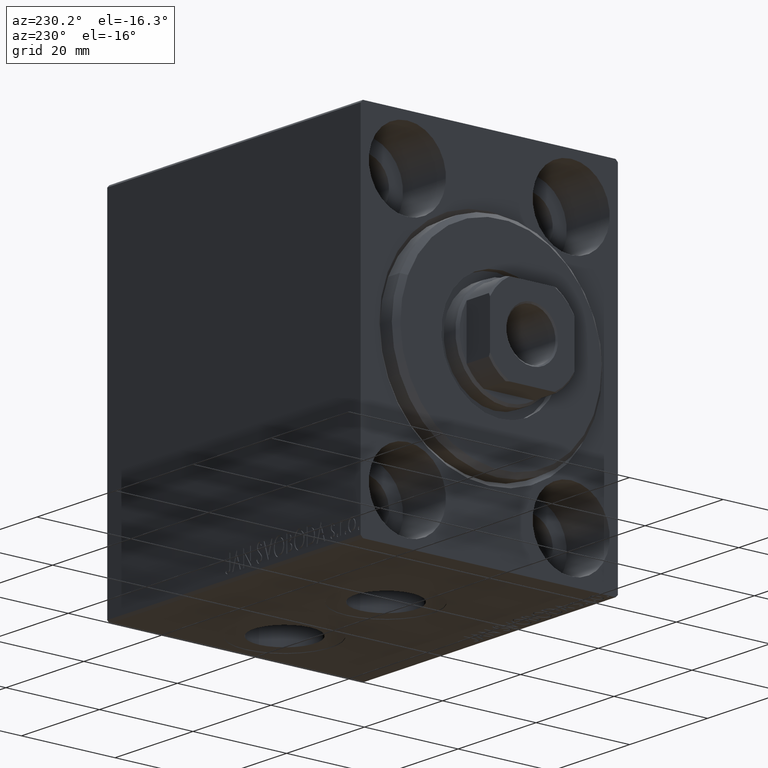
[diagram: clean part render]
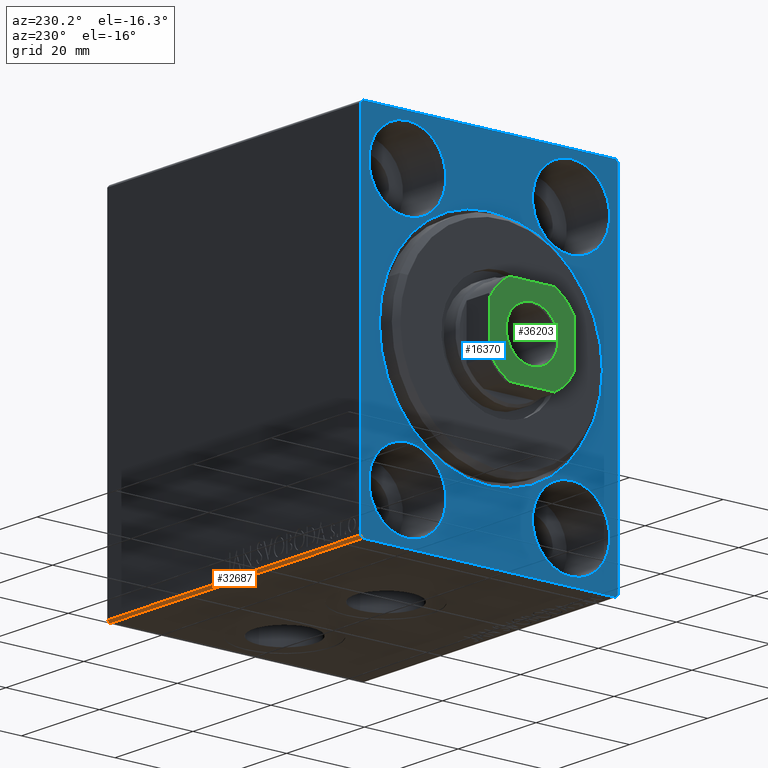
[diagram: same view with three faces highlighted in distinct colors, each labeled with its STEP entity id]
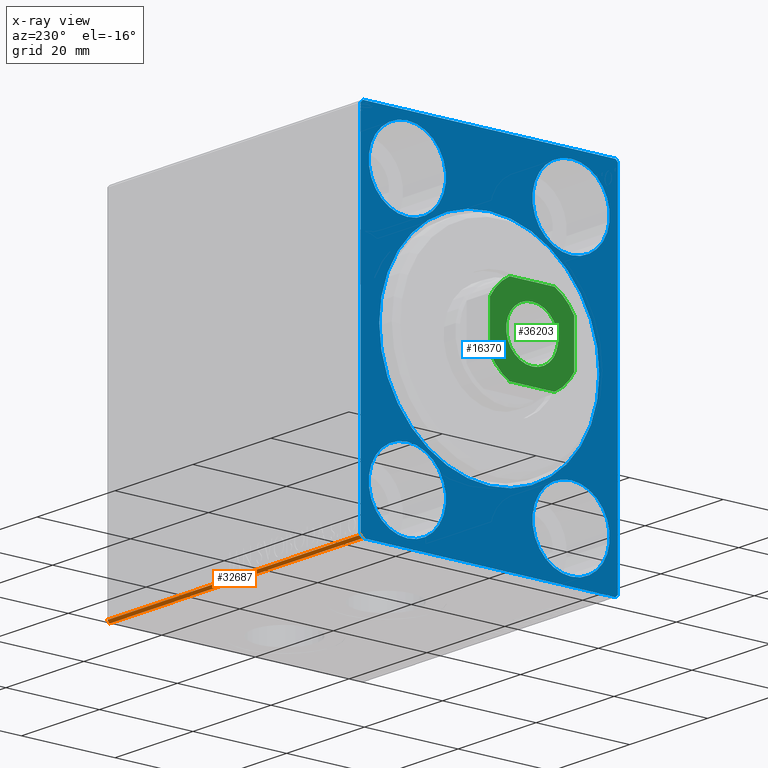
[diagram: x-ray of the same camera — body ghosted, the three highlighted faces saturated]
A machine part, auxiliary view with three faces highlighted in distinct colors.
The next image is the same camera in x-ray (body ghosted, the three faces saturated) — at least one of them is partly hidden behind the body in this view.
Their STEP definitions:

[orange] entity #32687 — the highlighted planar face has unit normal (0, -0.7071, 0.7071).
#1030 = LINE ( 'NONE', #14602, #32467 ) ;
#1162 = VECTOR ( 'NONE', #5565, 1000.000000000000000 ) ;
#1657 = ORIENTED_EDGE ( 'NONE', *, *, #28628, .F. ) ;
#4346 = LINE ( 'NONE', #28368, #38050 ) ;
#4579 = DIRECTION ( 'NONE',  ( -0.000000000000000000, 0.7071067811865474617, 0.7071067811865474617 ) ) ;
#4758 = EDGE_CURVE ( 'NONE', #41721, #27553, #4346, .T. ) ;
#4868 = ORIENTED_EDGE ( 'NONE', *, *, #9123, .F. ) ;
#5565 = DIRECTION ( 'NONE',  ( 1.000000000000000000, 0.000000000000000000, 0.000000000000000000 ) ) ;
#5791 = FACE_OUTER_BOUND ( 'NONE', #11241, .T. ) ;
#6175 = ORIENTED_EDGE ( 'NONE', *, *, #4758, .F. ) ;
#7812 = VERTEX_POINT ( 'NONE', #17552 ) ;
#8891 = CARTESIAN_POINT ( 'NONE',  ( 65.00000000000000000, 27.00000000000000355, -37.50000000000000000 ) ) ;
#9123 = EDGE_CURVE ( 'NONE', #7812, #12688, #1030, .T. ) ;
#11241 = EDGE_LOOP ( 'NONE', ( #4868, #41820, #6175, #1657 ) ) ;
#12688 = VERTEX_POINT ( 'NONE', #30567 ) ;
#14602 = CARTESIAN_POINT ( 'NONE',  ( 65.00000000000000000, 32.25000000000000000, -32.25000000000000000 ) ) ;
#16736 = VECTOR ( 'NONE', #29901, 1000.000000000000000 ) ;
#17552 = CARTESIAN_POINT ( 'NONE',  ( 65.00000000000000000, 27.00000000000000355, -37.50000000000000000 ) ) ;
#19348 = DIRECTION ( 'NONE',  ( -1.000000000000000000, 0.000000000000000000, 0.000000000000000000 ) ) ;
#22703 = PLANE ( 'NONE',  #37294 ) ;
#22781 = CARTESIAN_POINT ( 'NONE',  ( 65.00000000000000000, 27.50000000000000355, -37.00000000000000000 ) ) ;
#27553 = VERTEX_POINT ( 'NONE', #34959 ) ;
#28368 = CARTESIAN_POINT ( 'NONE',  ( 0.000000000000000000, 27.50000000000000355, -37.00000000000000000 ) ) ;
#28628 = EDGE_CURVE ( 'NONE', #12688, #41721, #42795, .T. ) ;
#29372 = CARTESIAN_POINT ( 'NONE',  ( 65.00000000000000000, 27.50000000000000355, -37.00000000000000000 ) ) ;
#29901 = DIRECTION ( 'NONE',  ( -1.000000000000000000, 0.000000000000000000, 0.000000000000000000 ) ) ;
#30567 = CARTESIAN_POINT ( 'NONE',  ( 65.00000000000000000, 27.50000000000000355, -37.00000000000000000 ) ) ;
#32467 = VECTOR ( 'NONE', #4579, 1000.000000000000114 ) ;
#32687 = ADVANCED_FACE ( 'NONE', ( #5791 ), #22703, .F. ) ;
#33300 = CARTESIAN_POINT ( 'NONE',  ( 0.000000000000000000, 27.50000000000000355, -37.00000000000000000 ) ) ;
#34796 = EDGE_CURVE ( 'NONE', #27553, #7812, #36461, .T. ) ;
#34959 = CARTESIAN_POINT ( 'NONE',  ( 0.000000000000000000, 27.00000000000000355, -37.50000000000000000 ) ) ;
#36461 = LINE ( 'NONE', #8891, #1162 ) ;
#37294 = AXIS2_PLACEMENT_3D ( 'NONE', #29372, #42715, #19348 ) ;
#38050 = VECTOR ( 'NONE', #38369, 1000.000000000000114 ) ;
#38369 = DIRECTION ( 'NONE',  ( 0.000000000000000000, -0.7071067811865474617, -0.7071067811865474617 ) ) ;
#41721 = VERTEX_POINT ( 'NONE', #33300 ) ;
#41820 = ORIENTED_EDGE ( 'NONE', *, *, #34796, .F. ) ;
#42715 = DIRECTION ( 'NONE',  ( 0.000000000000000000, -0.7071067811865475727, 0.7071067811865475727 ) ) ;
#42795 = LINE ( 'NONE', #22781, #16736 ) ;

[blue] entity #16370 — the highlighted planar face has unit normal (1, 0, 0).
#368 = ORIENTED_EDGE ( 'NONE', *, *, #11063, .F. ) ;
#440 = DIRECTION ( 'NONE',  ( -1.000000000000000000, 0.000000000000000000, 0.000000000000000000 ) ) ;
#712 = DIRECTION ( 'NONE',  ( 0.000000000000000000, 0.000000000000000000, -1.000000000000000000 ) ) ;
#1282 = VECTOR ( 'NONE', #16894, 1000.000000000000000 ) ;
#1311 = VERTEX_POINT ( 'NONE', #39903 ) ;
#1326 = FACE_BOUND ( 'NONE', #9850, .T. ) ;
#1363 = DIRECTION ( 'NONE',  ( -0.000000000000000000, 0.7071067811865474617, 0.7071067811865474617 ) ) ;
#1535 = FACE_BOUND ( 'NONE', #3327, .T. ) ;
#1678 = ORIENTED_EDGE ( 'NONE', *, *, #4758, .T. ) ;
#1694 = ORIENTED_EDGE ( 'NONE', *, *, #21993, .F. ) ;
#2352 = EDGE_CURVE ( 'NONE', #36890, #1311, #10735, .T. ) ;
#2458 = EDGE_CURVE ( 'NONE', #14462, #37408, #41550, .T. ) ;
#2477 = CARTESIAN_POINT ( 'NONE',  ( 0.000000000000000000, 27.49999999999999645, 37.00000000000001421 ) ) ;
#2564 = CARTESIAN_POINT ( 'NONE',  ( 0.000000000000000000, 17.50000000000000355, 27.49999999999999645 ) ) ;
#2590 = VERTEX_POINT ( 'NONE', #24025 ) ;
#2596 = EDGE_CURVE ( 'NONE', #10466, #9558, #22401, .T. ) ;
#2633 = CARTESIAN_POINT ( 'NONE',  ( 0.000000000000000000, -17.50000000000000355, -35.75000000000000711 ) ) ;
#2797 = CARTESIAN_POINT ( 'NONE',  ( 0.000000000000000000, 2.877919977996282293E-15, -23.50000000000001776 ) ) ;
#3195 = DIRECTION ( 'NONE',  ( -1.000000000000000000, 0.000000000000000000, 0.000000000000000000 ) ) ;
#3327 = EDGE_LOOP ( 'NONE', ( #28999, #39803 ) ) ;
#3383 = VERTEX_POINT ( 'NONE', #36279 ) ;
#4346 = LINE ( 'NONE', #28368, #38050 ) ;
#4552 = VECTOR ( 'NONE', #37622, 1000.000000000000000 ) ;
#4758 = EDGE_CURVE ( 'NONE', #41721, #27553, #4346, .T. ) ;
#4987 = ORIENTED_EDGE ( 'NONE', *, *, #20177, .F. ) ;
#5596 = DIRECTION ( 'NONE',  ( 0.000000000000000000, 0.000000000000000000, 1.000000000000000000 ) ) ;
#5807 = VERTEX_POINT ( 'NONE', #2797 ) ;
#6579 = EDGE_LOOP ( 'NONE', ( #24507, #41042 ) ) ;
#7542 = DIRECTION ( 'NONE',  ( 0.000000000000000000, 0.000000000000000000, 1.000000000000000000 ) ) ;
#7793 = ORIENTED_EDGE ( 'NONE', *, *, #42515, .F. ) ;
#8461 = ORIENTED_EDGE ( 'NONE', *, *, #35832, .T. ) ;
#8558 = ORIENTED_EDGE ( 'NONE', *, *, #13775, .T. ) ;
#8667 = CARTESIAN_POINT ( 'NONE',  ( 0.000000000000000000, -17.49999999999999645, 35.74999999999999289 ) ) ;
#9459 = DIRECTION ( 'NONE',  ( -1.000000000000000000, 0.000000000000000000, 0.000000000000000000 ) ) ;
#9558 = VERTEX_POINT ( 'NONE', #28071 ) ;
#9850 = EDGE_LOOP ( 'NONE', ( #1694, #4987 ) ) ;
#10278 = CARTESIAN_POINT ( 'NONE',  ( 0.000000000000000000, 27.00000000000001066, 37.50000000000000711 ) ) ;
#10466 = VERTEX_POINT ( 'NONE', #8667 ) ;
#10708 = ORIENTED_EDGE ( 'NONE', *, *, #11302, .F. ) ;
#10735 = LINE ( 'NONE', #24714, #39411 ) ;
#10834 = DIRECTION ( 'NONE',  ( 0.000000000000000000, 0.000000000000000000, 1.000000000000000000 ) ) ;
#11051 = AXIS2_PLACEMENT_3D ( 'NONE', #33667, #3195, #16774 ) ;
#11063 = EDGE_CURVE ( 'NONE', #26290, #27061, #22910, .T. ) ;
#11268 = AXIS2_PLACEMENT_3D ( 'NONE', #18445, #28462, #28025 ) ;
#11302 = EDGE_CURVE ( 'NONE', #26155, #23049, #23200, .T. ) ;
#11949 = DIRECTION ( 'NONE',  ( -1.000000000000000000, 0.000000000000000000, 0.000000000000000000 ) ) ;
#13338 = VECTOR ( 'NONE', #1363, 1000.000000000000114 ) ;
#13355 = LINE ( 'NONE', #27143, #37586 ) ;
#13739 = CARTESIAN_POINT ( 'NONE',  ( 0.000000000000000000, -17.50000000000000355, -27.50000000000000355 ) ) ;
#13775 = EDGE_CURVE ( 'NONE', #36890, #27061, #18480, .T. ) ;
#14025 = CARTESIAN_POINT ( 'NONE',  ( 0.000000000000000000, -27.00000000000001776, 37.50000000000000000 ) ) ;
#14218 = EDGE_CURVE ( 'NONE', #3383, #5807, #39600, .T. ) ;
#14462 = VERTEX_POINT ( 'NONE', #24304 ) ;
#14507 = AXIS2_PLACEMENT_3D ( 'NONE', #16161, #11949, #29738 ) ;
#14707 = EDGE_CURVE ( 'NONE', #23049, #26155, #42455, .T. ) ;
#14901 = FACE_OUTER_BOUND ( 'NONE', #35795, .T. ) ;
#15251 = AXIS2_PLACEMENT_3D ( 'NONE', #25797, #25581, #39139 ) ;
#15529 = DIRECTION ( 'NONE',  ( 0.000000000000000000, 0.000000000000000000, -1.000000000000000000 ) ) ;
#15716 = VERTEX_POINT ( 'NONE', #22805 ) ;
#15871 = AXIS2_PLACEMENT_3D ( 'NONE', #19365, #25382, #5596 ) ;
#16136 = DIRECTION ( 'NONE',  ( 0.000000000000000000, 0.000000000000000000, 1.000000000000000000 ) ) ;
#16161 = CARTESIAN_POINT ( 'NONE',  ( 0.000000000000000000, 17.49999999999999645, -27.50000000000000355 ) ) ;
#16370 = ADVANCED_FACE ( 'NONE', ( #34702, #1535, #24466, #25106, #1326, #14901 ), #42234, .F. ) ;
#16448 = VERTEX_POINT ( 'NONE', #2633 ) ;
#16579 = CARTESIAN_POINT ( 'NONE',  ( 0.000000000000000000, 17.50000000000000355, 27.49999999999999645 ) ) ;
#16774 = DIRECTION ( 'NONE',  ( 0.000000000000000000, 0.000000000000000000, 1.000000000000000000 ) ) ;
#16894 = DIRECTION ( 'NONE',  ( 0.000000000000000000, -9.251858538542970348E-17, 1.000000000000000000 ) ) ;
#17072 = CARTESIAN_POINT ( 'NONE',  ( 0.000000000000000000, 27.00000000000001066, 37.50000000000000711 ) ) ;
#17616 = AXIS2_PLACEMENT_3D ( 'NONE', #16579, #29489, #43050 ) ;
#18445 = CARTESIAN_POINT ( 'NONE',  ( 0.000000000000000000, 0.000000000000000000, 0.000000000000000000 ) ) ;
#18480 = LINE ( 'NONE', #31404, #13338 ) ;
#18532 = ORIENTED_EDGE ( 'NONE', *, *, #14707, .F. ) ;
#18569 = ORIENTED_EDGE ( 'NONE', *, *, #40813, .F. ) ;
#19080 = DIRECTION ( 'NONE',  ( 1.000000000000000000, 0.000000000000000000, 0.000000000000000000 ) ) ;
#19365 = CARTESIAN_POINT ( 'NONE',  ( 0.000000000000000000, -17.50000000000000355, -27.50000000000000355 ) ) ;
#19673 = DIRECTION ( 'NONE',  ( 1.000000000000000000, 0.000000000000000000, 0.000000000000000000 ) ) ;
#20177 = EDGE_CURVE ( 'NONE', #16448, #15716, #42621, .T. ) ;
#20279 = ORIENTED_EDGE ( 'NONE', *, *, #14218, .T. ) ;
#20840 = DIRECTION ( 'NONE',  ( -1.000000000000000000, 0.000000000000000000, 0.000000000000000000 ) ) ;
#21210 = AXIS2_PLACEMENT_3D ( 'NONE', #39900, #19673, #23004 ) ;
#21451 = DIRECTION ( 'NONE',  ( -0.000000000000000000, -0.7071067811865474617, 0.7071067811865474617 ) ) ;
#21993 = EDGE_CURVE ( 'NONE', #15716, #16448, #43556, .T. ) ;
#22176 = CARTESIAN_POINT ( 'NONE',  ( 0.000000000000000000, 17.50000000000000355, 19.25000000000000000 ) ) ;
#22392 = CARTESIAN_POINT ( 'NONE',  ( 0.000000000000000000, 17.50000000000000355, 35.74999999999999289 ) ) ;
#22401 = CIRCLE ( 'NONE', #33056, 8.249999999999992895 ) ;
#22504 = VECTOR ( 'NONE', #21451, 1000.000000000000114 ) ;
#22805 = CARTESIAN_POINT ( 'NONE',  ( 0.000000000000000000, -17.50000000000000355, -19.25000000000000355 ) ) ;
#22910 = LINE ( 'NONE', #43157, #37433 ) ;
#23004 = DIRECTION ( 'NONE',  ( 0.000000000000000000, 0.000000000000000000, -1.000000000000000000 ) ) ;
#23049 = VERTEX_POINT ( 'NONE', #22392 ) ;
#23200 = CIRCLE ( 'NONE', #40234, 8.249999999999992895 ) ;
#23661 = CARTESIAN_POINT ( 'NONE',  ( 0.000000000000000000, -27.50000000000000355, 37.00000000000001421 ) ) ;
#23797 = CARTESIAN_POINT ( 'NONE',  ( 0.000000000000000000, -17.49999999999999645, 27.49999999999999645 ) ) ;
#24025 = CARTESIAN_POINT ( 'NONE',  ( 0.000000000000000000, -27.00000000000000355, -37.50000000000000000 ) ) ;
#24065 = LINE ( 'NONE', #10278, #4552 ) ;
#24148 = EDGE_LOOP ( 'NONE', ( #18532, #10708 ) ) ;
#24304 = CARTESIAN_POINT ( 'NONE',  ( 0.000000000000000000, 17.49999999999999645, -19.25000000000000355 ) ) ;
#24466 = FACE_BOUND ( 'NONE', #6579, .T. ) ;
#24507 = ORIENTED_EDGE ( 'NONE', *, *, #2596, .F. ) ;
#24714 = CARTESIAN_POINT ( 'NONE',  ( 0.000000000000000000, -27.50000000000000355, 37.50000000000000000 ) ) ;
#24996 = CARTESIAN_POINT ( 'NONE',  ( 0.000000000000000000, -27.00000000000000355, -37.50000000000000000 ) ) ;
#25106 = FACE_BOUND ( 'NONE', #24148, .T. ) ;
#25279 = EDGE_CURVE ( 'NONE', #37408, #14462, #27992, .T. ) ;
#25382 = DIRECTION ( 'NONE',  ( -1.000000000000000000, 0.000000000000000000, 0.000000000000000000 ) ) ;
#25400 = AXIS2_PLACEMENT_3D ( 'NONE', #32428, #19080, #15529 ) ;
#25581 = DIRECTION ( 'NONE',  ( -1.000000000000000000, 0.000000000000000000, 0.000000000000000000 ) ) ;
#25797 = CARTESIAN_POINT ( 'NONE',  ( 0.000000000000000000, 17.49999999999999645, -27.50000000000000355 ) ) ;
#26155 = VERTEX_POINT ( 'NONE', #22176 ) ;
#26290 = VERTEX_POINT ( 'NONE', #17072 ) ;
#27061 = VERTEX_POINT ( 'NONE', #14025 ) ;
#27143 = CARTESIAN_POINT ( 'NONE',  ( 0.000000000000000000, -27.50000000000000355, -37.50000000000000000 ) ) ;
#27553 = VERTEX_POINT ( 'NONE', #34959 ) ;
#27992 = CIRCLE ( 'NONE', #14507, 8.250000000000000000 ) ;
#28025 = DIRECTION ( 'NONE',  ( 0.000000000000000000, 0.000000000000000000, -1.000000000000000000 ) ) ;
#28071 = CARTESIAN_POINT ( 'NONE',  ( 0.000000000000000000, -17.49999999999999645, 19.25000000000000000 ) ) ;
#28368 = CARTESIAN_POINT ( 'NONE',  ( 0.000000000000000000, 27.50000000000000355, -37.00000000000000000 ) ) ;
#28462 = DIRECTION ( 'NONE',  ( 1.000000000000000000, 0.000000000000000000, 0.000000000000000000 ) ) ;
#28782 = EDGE_CURVE ( 'NONE', #9558, #10466, #32342, .T. ) ;
#28999 = ORIENTED_EDGE ( 'NONE', *, *, #2458, .F. ) ;
#29162 = DIRECTION ( 'NONE',  ( 0.000000000000000000, -1.000000000000000000, -1.261617073437677999E-16 ) ) ;
#29480 = EDGE_CURVE ( 'NONE', #26290, #43507, #24065, .T. ) ;
#29489 = DIRECTION ( 'NONE',  ( -1.000000000000000000, 0.000000000000000000, 0.000000000000000000 ) ) ;
#29738 = DIRECTION ( 'NONE',  ( 0.000000000000000000, 0.000000000000000000, 1.000000000000000000 ) ) ;
#30239 = LINE ( 'NONE', #33787, #1282 ) ;
#31404 = CARTESIAN_POINT ( 'NONE',  ( 0.000000000000000000, -27.50000000000000355, 37.00000000000001421 ) ) ;
#31458 = EDGE_LOOP ( 'NONE', ( #20279, #38245 ) ) ;
#31796 = ORIENTED_EDGE ( 'NONE', *, *, #2352, .F. ) ;
#32342 = CIRCLE ( 'NONE', #11051, 8.249999999999992895 ) ;
#32428 = CARTESIAN_POINT ( 'NONE',  ( 0.000000000000000000, 0.000000000000000000, 0.000000000000000000 ) ) ;
#32674 = CARTESIAN_POINT ( 'NONE',  ( 0.000000000000000000, 17.49999999999999645, -35.75000000000000711 ) ) ;
#33056 = AXIS2_PLACEMENT_3D ( 'NONE', #23797, #440, #7542 ) ;
#33295 = CIRCLE ( 'NONE', #21210, 23.50000000000001776 ) ;
#33300 = CARTESIAN_POINT ( 'NONE',  ( 0.000000000000000000, 27.50000000000000355, -37.00000000000000000 ) ) ;
#33667 = CARTESIAN_POINT ( 'NONE',  ( 0.000000000000000000, -17.49999999999999645, 27.49999999999999645 ) ) ;
#33787 = CARTESIAN_POINT ( 'NONE',  ( 0.000000000000000000, 27.50000000000000355, -37.50000000000000000 ) ) ;
#34702 = FACE_BOUND ( 'NONE', #31458, .T. ) ;
#34959 = CARTESIAN_POINT ( 'NONE',  ( 0.000000000000000000, 27.00000000000000355, -37.50000000000000000 ) ) ;
#35010 = LINE ( 'NONE', #24996, #22504 ) ;
#35795 = EDGE_LOOP ( 'NONE', ( #31796, #8558, #368, #41378, #18569, #1678, #7793, #8461 ) ) ;
#35832 = EDGE_CURVE ( 'NONE', #2590, #1311, #35010, .T. ) ;
#36279 = CARTESIAN_POINT ( 'NONE',  ( 0.000000000000000000, 0.000000000000000000, 23.50000000000001776 ) ) ;
#36890 = VERTEX_POINT ( 'NONE', #23661 ) ;
#37408 = VERTEX_POINT ( 'NONE', #32674 ) ;
#37433 = VECTOR ( 'NONE', #29162, 1000.000000000000000 ) ;
#37586 = VECTOR ( 'NONE', #39804, 1000.000000000000000 ) ;
#37622 = DIRECTION ( 'NONE',  ( -0.000000000000000000, 0.7071067811865426878, -0.7071067811865524577 ) ) ;
#37648 = AXIS2_PLACEMENT_3D ( 'NONE', #13739, #20840, #10834 ) ;
#38050 = VECTOR ( 'NONE', #38369, 1000.000000000000114 ) ;
#38245 = ORIENTED_EDGE ( 'NONE', *, *, #41232, .T. ) ;
#38369 = DIRECTION ( 'NONE',  ( 0.000000000000000000, -0.7071067811865474617, -0.7071067811865474617 ) ) ;
#39139 = DIRECTION ( 'NONE',  ( 0.000000000000000000, 0.000000000000000000, 1.000000000000000000 ) ) ;
#39411 = VECTOR ( 'NONE', #712, 1000.000000000000000 ) ;
#39600 = CIRCLE ( 'NONE', #25400, 23.50000000000001776 ) ;
#39803 = ORIENTED_EDGE ( 'NONE', *, *, #25279, .F. ) ;
#39804 = DIRECTION ( 'NONE',  ( 0.000000000000000000, 1.000000000000000000, 0.000000000000000000 ) ) ;
#39900 = CARTESIAN_POINT ( 'NONE',  ( 0.000000000000000000, 0.000000000000000000, 0.000000000000000000 ) ) ;
#39903 = CARTESIAN_POINT ( 'NONE',  ( 0.000000000000000000, -27.50000000000000355, -37.00000000000000000 ) ) ;
#40234 = AXIS2_PLACEMENT_3D ( 'NONE', #2564, #9459, #16136 ) ;
#40813 = EDGE_CURVE ( 'NONE', #41721, #43507, #30239, .T. ) ;
#41042 = ORIENTED_EDGE ( 'NONE', *, *, #28782, .F. ) ;
#41232 = EDGE_CURVE ( 'NONE', #5807, #3383, #33295, .T. ) ;
#41378 = ORIENTED_EDGE ( 'NONE', *, *, #29480, .T. ) ;
#41550 = CIRCLE ( 'NONE', #15251, 8.250000000000000000 ) ;
#41721 = VERTEX_POINT ( 'NONE', #33300 ) ;
#42234 = PLANE ( 'NONE',  #11268 ) ;
#42455 = CIRCLE ( 'NONE', #17616, 8.249999999999992895 ) ;
#42515 = EDGE_CURVE ( 'NONE', #2590, #27553, #13355, .T. ) ;
#42621 = CIRCLE ( 'NONE', #37648, 8.250000000000000000 ) ;
#43050 = DIRECTION ( 'NONE',  ( 0.000000000000000000, 0.000000000000000000, 1.000000000000000000 ) ) ;
#43157 = CARTESIAN_POINT ( 'NONE',  ( 0.000000000000000000, 27.49999999999999645, 37.50000000000000711 ) ) ;
#43507 = VERTEX_POINT ( 'NONE', #2477 ) ;
#43556 = CIRCLE ( 'NONE', #15871, 8.250000000000000000 ) ;

[green] entity #36203 — the highlighted planar face has unit normal (-1, 0, 0).
#108 = ORIENTED_EDGE ( 'NONE', *, *, #19900, .T. ) ;
#508 = CARTESIAN_POINT ( 'NONE',  ( 4.800000000000029132, -9.000000000000001776, 61.99999999999999289 ) ) ;
#1307 = CARTESIAN_POINT ( 'NONE',  ( 4.800000000000035350, 8.999999999999998224, 61.99999999999999289 ) ) ;
#2461 = CARTESIAN_POINT ( 'NONE',  ( -5.549999999999998934, 6.796789735267809794E-16, 61.99999999999999289 ) ) ;
#3200 = CARTESIAN_POINT ( 'NONE',  ( 9.000000000000001776, -4.800000000000030020, 61.99999999999999289 ) ) ;
#3215 = VERTEX_POINT ( 'NONE', #508 ) ;
#4012 = ORIENTED_EDGE ( 'NONE', *, *, #39401, .T. ) ;
#5555 = CARTESIAN_POINT ( 'NONE',  ( 0.000000000000000000, 0.000000000000000000, 61.99999999999999289 ) ) ;
#6914 = LINE ( 'NONE', #27371, #7541 ) ;
#7061 = VERTEX_POINT ( 'NONE', #14261 ) ;
#7112 = VECTOR ( 'NONE', #24074, 1000.000000000000000 ) ;
#7293 = DIRECTION ( 'NONE',  ( 1.000000000000000000, 0.000000000000000000, 0.000000000000000000 ) ) ;
#7541 = VECTOR ( 'NONE', #41358, 1000.000000000000000 ) ;
#8564 = EDGE_LOOP ( 'NONE', ( #26696, #17354, #20061, #29167, #108, #23340, #29241, #31647 ) ) ;
#8672 = VERTEX_POINT ( 'NONE', #33422 ) ;
#9063 = CIRCLE ( 'NONE', #33936, 5.549999999999998934 ) ;
#9817 = EDGE_CURVE ( 'NONE', #19700, #3215, #6914, .T. ) ;
#9978 = PLANE ( 'NONE',  #32424 ) ;
#10032 = ORIENTED_EDGE ( 'NONE', *, *, #23617, .T. ) ;
#10530 = EDGE_LOOP ( 'NONE', ( #4012, #10032 ) ) ;
#11421 = DIRECTION ( 'NONE',  ( -0.000000000000000000, 0.000000000000000000, 1.000000000000000000 ) ) ;
#12081 = VERTEX_POINT ( 'NONE', #1307 ) ;
#12452 = DIRECTION ( 'NONE',  ( 0.000000000000000000, -0.000000000000000000, -1.000000000000000000 ) ) ;
#13410 = CARTESIAN_POINT ( 'NONE',  ( -9.000000000000001776, 8.999999999999998224, 61.99999999999999289 ) ) ;
#13455 = CARTESIAN_POINT ( 'NONE',  ( -8.999999999999998224, -4.800000000000022027, 61.99999999999999289 ) ) ;
#13485 = CARTESIAN_POINT ( 'NONE',  ( 0.000000000000000000, 0.000000000000000000, 61.99999999999999289 ) ) ;
#13755 = DIRECTION ( 'NONE',  ( 1.000000000000000000, 0.000000000000000000, 0.000000000000000000 ) ) ;
#14060 = LINE ( 'NONE', #13410, #7112 ) ;
#14261 = CARTESIAN_POINT ( 'NONE',  ( 8.999999999999998224, 4.800000000000033573, 61.99999999999999289 ) ) ;
#14477 = AXIS2_PLACEMENT_3D ( 'NONE', #5555, #12452, #18888 ) ;
#15260 = DIRECTION ( 'NONE',  ( 0.000000000000000000, -0.000000000000000000, -1.000000000000000000 ) ) ;
#16328 = EDGE_CURVE ( 'NONE', #12081, #8672, #18227, .T. ) ;
#16881 = CARTESIAN_POINT ( 'NONE',  ( -9.000000000000001776, 4.799999999999996270, 61.99999999999999289 ) ) ;
#17354 = ORIENTED_EDGE ( 'NONE', *, *, #42730, .T. ) ;
#17542 = CARTESIAN_POINT ( 'NONE',  ( 8.999999999999998224, 8.999999999999998224, 61.99999999999999289 ) ) ;
#17751 = CARTESIAN_POINT ( 'NONE',  ( 0.000000000000000000, 0.000000000000000000, 61.99999999999999289 ) ) ;
#18227 = LINE ( 'NONE', #27817, #18361 ) ;
#18361 = VECTOR ( 'NONE', #21357, 1000.000000000000000 ) ;
#18385 = VERTEX_POINT ( 'NONE', #2461 ) ;
#18888 = DIRECTION ( 'NONE',  ( 1.000000000000000000, 0.000000000000000000, 0.000000000000000000 ) ) ;
#19462 = DIRECTION ( 'NONE',  ( -0.000000000000000000, 0.000000000000000000, 1.000000000000000000 ) ) ;
#19700 = VERTEX_POINT ( 'NONE', #38973 ) ;
#19743 = EDGE_CURVE ( 'NONE', #3215, #24547, #20612, .T. ) ;
#19900 = EDGE_CURVE ( 'NONE', #28935, #43347, #14060, .T. ) ;
#20061 = ORIENTED_EDGE ( 'NONE', *, *, #16328, .T. ) ;
#20612 = CIRCLE ( 'NONE', #23459, 10.20000000000001528 ) ;
#21237 = AXIS2_PLACEMENT_3D ( 'NONE', #29488, #26147, #32600 ) ;
#21308 = DIRECTION ( 'NONE',  ( -0.000000000000000000, 0.000000000000000000, 1.000000000000000000 ) ) ;
#21357 = DIRECTION ( 'NONE',  ( -1.000000000000000000, -0.000000000000000000, -0.000000000000000000 ) ) ;
#23340 = ORIENTED_EDGE ( 'NONE', *, *, #29089, .T. ) ;
#23363 = CIRCLE ( 'NONE', #21237, 10.20000000000001528 ) ;
#23459 = AXIS2_PLACEMENT_3D ( 'NONE', #34984, #11421, #38527 ) ;
#23617 = EDGE_CURVE ( 'NONE', #18385, #25320, #26535, .T. ) ;
#23754 = DIRECTION ( 'NONE',  ( -0.000000000000000000, 0.000000000000000000, 1.000000000000000000 ) ) ;
#23915 = EDGE_CURVE ( 'NONE', #24547, #7061, #31754, .T. ) ;
#24074 = DIRECTION ( 'NONE',  ( 1.927470528863119049E-16, -1.000000000000000000, 0.000000000000000000 ) ) ;
#24547 = VERTEX_POINT ( 'NONE', #3200 ) ;
#25320 = VERTEX_POINT ( 'NONE', #43077 ) ;
#26147 = DIRECTION ( 'NONE',  ( -0.000000000000000000, 0.000000000000000000, 1.000000000000000000 ) ) ;
#26535 = CIRCLE ( 'NONE', #14477, 5.549999999999998934 ) ;
#26666 = AXIS2_PLACEMENT_3D ( 'NONE', #17751, #21308, #7293 ) ;
#26696 = ORIENTED_EDGE ( 'NONE', *, *, #23915, .T. ) ;
#27371 = CARTESIAN_POINT ( 'NONE',  ( -8.999999999999998224, -9.000000000000001776, 61.99999999999999289 ) ) ;
#27817 = CARTESIAN_POINT ( 'NONE',  ( -9.000000000000001776, 8.999999999999998224, 61.99999999999999289 ) ) ;
#28657 = VECTOR ( 'NONE', #31329, 1000.000000000000000 ) ;
#28935 = VERTEX_POINT ( 'NONE', #16881 ) ;
#29089 = EDGE_CURVE ( 'NONE', #43347, #19700, #40143, .T. ) ;
#29167 = ORIENTED_EDGE ( 'NONE', *, *, #33446, .T. ) ;
#29241 = ORIENTED_EDGE ( 'NONE', *, *, #9817, .T. ) ;
#29488 = CARTESIAN_POINT ( 'NONE',  ( 0.000000000000000000, 0.000000000000000000, 61.99999999999999289 ) ) ;
#29776 = FACE_BOUND ( 'NONE', #10530, .T. ) ;
#29934 = DIRECTION ( 'NONE',  ( 1.000000000000000000, 0.000000000000000000, 0.000000000000000000 ) ) ;
#31329 = DIRECTION ( 'NONE',  ( -1.927470528863119049E-16, 1.000000000000000000, -0.000000000000000000 ) ) ;
#31647 = ORIENTED_EDGE ( 'NONE', *, *, #19743, .T. ) ;
#31754 = LINE ( 'NONE', #17542, #28657 ) ;
#32424 = AXIS2_PLACEMENT_3D ( 'NONE', #39974, #23754, #13755 ) ;
#32600 = DIRECTION ( 'NONE',  ( 1.000000000000000000, 0.000000000000000000, 0.000000000000000000 ) ) ;
#33325 = FACE_OUTER_BOUND ( 'NONE', #8564, .T. ) ;
#33422 = CARTESIAN_POINT ( 'NONE',  ( -4.800000000000001599, 8.999999999999998224, 61.99999999999999289 ) ) ;
#33446 = EDGE_CURVE ( 'NONE', #8672, #28935, #43011, .T. ) ;
#33936 = AXIS2_PLACEMENT_3D ( 'NONE', #35505, #15260, #36377 ) ;
#34984 = CARTESIAN_POINT ( 'NONE',  ( 0.000000000000000000, 0.000000000000000000, 61.99999999999999289 ) ) ;
#35505 = CARTESIAN_POINT ( 'NONE',  ( 0.000000000000000000, 0.000000000000000000, 61.99999999999999289 ) ) ;
#36203 = ADVANCED_FACE ( 'NONE', ( #29776, #33325 ), #9978, .T. ) ;
#36377 = DIRECTION ( 'NONE',  ( 1.000000000000000000, 0.000000000000000000, 0.000000000000000000 ) ) ;
#36619 = AXIS2_PLACEMENT_3D ( 'NONE', #13485, #19462, #29934 ) ;
#38527 = DIRECTION ( 'NONE',  ( 1.000000000000000000, 0.000000000000000000, 0.000000000000000000 ) ) ;
#38973 = CARTESIAN_POINT ( 'NONE',  ( -4.800000000000017586, -9.000000000000001776, 61.99999999999999289 ) ) ;
#39401 = EDGE_CURVE ( 'NONE', #25320, #18385, #9063, .T. ) ;
#39974 = CARTESIAN_POINT ( 'NONE',  ( 0.000000000000000000, 0.000000000000000000, 61.99999999999999289 ) ) ;
#40143 = CIRCLE ( 'NONE', #26666, 10.20000000000000995 ) ;
#41358 = DIRECTION ( 'NONE',  ( 1.000000000000000000, 0.000000000000000000, 0.000000000000000000 ) ) ;
#42730 = EDGE_CURVE ( 'NONE', #7061, #12081, #23363, .T. ) ;
#43011 = CIRCLE ( 'NONE', #36619, 10.19999999999999929 ) ;
#43077 = CARTESIAN_POINT ( 'NONE',  ( 5.549999999999998934, 0.000000000000000000, 61.99999999999999289 ) ) ;
#43347 = VERTEX_POINT ( 'NONE', #13455 ) ;